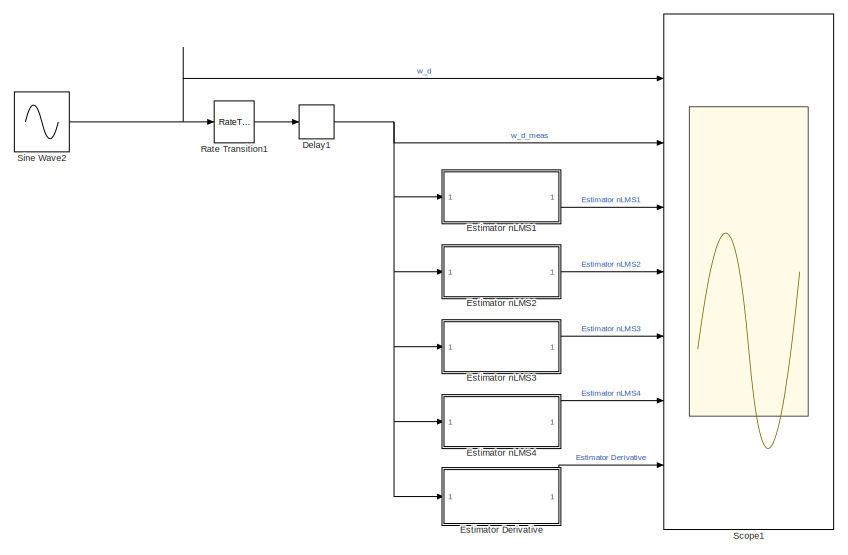
[diagram: root canvas - part 1/2, left side, full height]
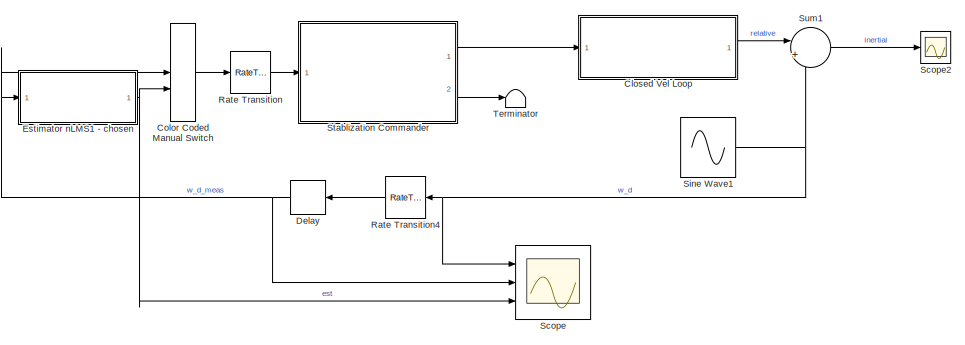
[diagram: root canvas - part 2/2, middle right region]
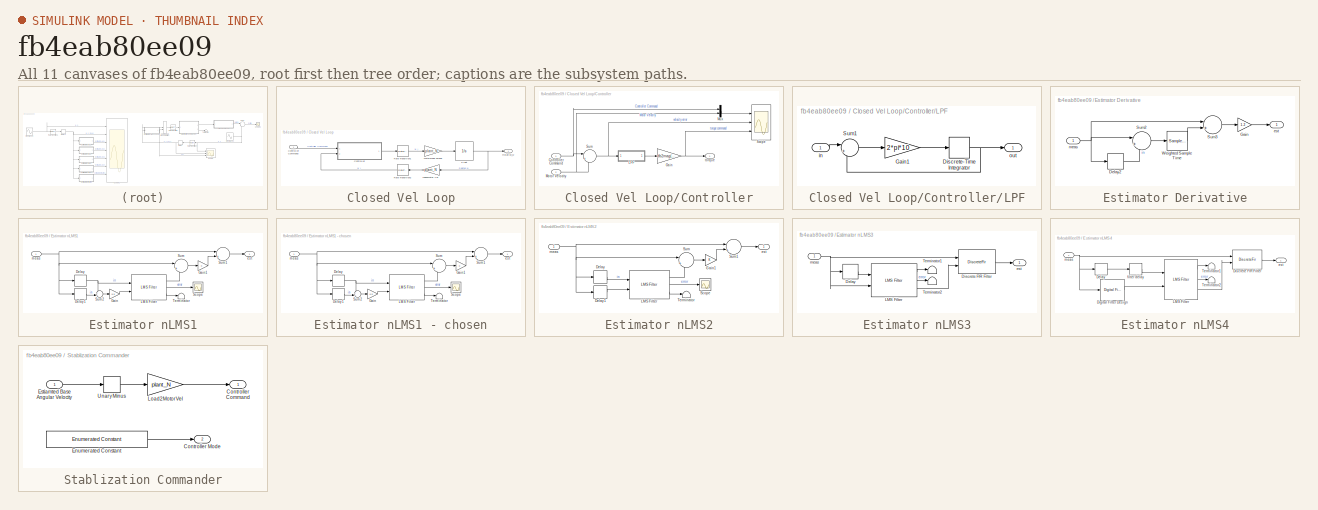
[diagram: thumbnail index - all 11 canvases of the model, root first then tree order]
MODEL slx_fb4eab80ee09
KIND model
CONFIG AbsTol = auto
CONFIG EnableMultiTasking = off
CONFIG FixedStep = auto
CONFIG MaxStep = auto
CONFIG MinStep = auto
CONFIG RelTol = 1e-3
CONFIG SampleTimeConstraint = Unconstrained
CONFIG SolverName = VariableStepAuto
CONFIG StartTime = 0.0
CONFIG StopTime = 20
BLOCK [SubSystem] Closed Vel Loop
  Ports = [1, 1]
  RequestExecContextInheritance = off
BLOCK [SubSystem] Closed Vel Loop/Controller
  Ports = [2, 1]
  RequestExecContextInheritance = off
BLOCK [Inport] Closed Vel Loop/Controller Command
BLOCK [Inport] Closed Vel Loop/Controller/Controller Command
BLOCK [Gain] Closed Vel Loop/Controller/Gain
  Gain = db2mag(25)
BLOCK [SubSystem] Closed Vel Loop/Controller/LPF
  Ports = [1, 1]
  RequestExecContextInheritance = off
BLOCK [DiscreteIntegrator] Closed Vel Loop/Controller/LPF/Discrete-Time Integrator
  ICPrevOutput = DiscIntNeverNeededParam
  ICPrevScaledInput = DiscIntNeverNeededParam
  InitialConditionSetting = Auto
  Ports = [1, 1]
  SampleTime = -1
BLOCK [Gain] Closed Vel Loop/Controller/LPF/Gain1
  Gain = 2*pi*10
BLOCK [Sum] Closed Vel Loop/Controller/LPF/Sum1
  Inputs = |+-
  Ports = [2, 1]
BLOCK [Inport] Closed Vel Loop/Controller/LPF/in
BLOCK [Outport] Closed Vel Loop/Controller/LPF/out
BLOCK [Inport] Closed Vel Loop/Controller/Motor Velocity
  Port = 2
BLOCK [Mux] Closed Vel Loop/Controller/Mux
  DisplayOption = bar
  Inputs = 2
  Ports = [2, 1]
BLOCK [Scope] Closed Vel Loop/Controller/Scope
  Floating = off
  NumInputPorts = 3
  Ports = [3]
  ScopeSpecificationString = Simulink.scopes.TimeScopeBlockCfg('CurrentConfiguration', extmgr.ConfigurationSet(extmgr.Configuration('Core','General UI',true),extmgr.Configuration('Core','Source UI',true),extmgr.Configuration('Sources','WiredSimulink',true,'DataLoggingVariableName','ScopeData1'),extmgr.Configuration('Visuals','Time Domain',true,'SerializedDisplays',{struct('MinYLimReal','-0.23853','MaxYLimReal','0.23581','YLab...<+2853ch>
BLOCK [Sum] Closed Vel Loop/Controller/Sum
  Inputs = |+-
  Ports = [2, 1]
BLOCK [Outport] Closed Vel Loop/Controller/torque
BLOCK [Gain] Closed Vel Loop/Load2Motor Vel
  Gain = plant_N
BLOCK [Gain] Closed Vel Loop/Motor2Load Torque
  Gain = plant_N
BLOCK [Integrator] Closed Vel Loop/Plant
  Ports = [1, 1]
BLOCK [RateTransition] Closed Vel Loop/Rate Transition1
  OutPortSampleTime = 0
BLOCK [RateTransition] Closed Vel Loop/Rate Transition2
  NameLocation = top
  OutPortSampleTime = ts_control
BLOCK [Outport] Closed Vel Loop/Relative_w
BLOCK [ManualSwitch] Color Coded Manual Switch
  CurrentSetting = 0
  OpenFcn = sw = get_param(gcb,'sw');\nif strcmp(sw,'1')\nset_param(gcb,'sw','0');\nelse\nset_param(gcb,'sw','1');\nend\nif strcmp(sw,'1')\n    set_param(gcb,'backgroundcolor','red')\nelse\n    set_param(gcb,'backgroundcolor','green')\nend
BLOCK [Delay] Delay
  DelayLength = 5
  InputPortMap = u0
  NameLocation = top
  Ports = [1, 1]
BLOCK [Delay] Delay1
  DelayLength = 5
  InputPortMap = u0
  Ports = [1, 1]
BLOCK [SubSystem] Estimator Derivative
  Ports = [1, 1]
  RequestExecContextInheritance = off
BLOCK [Delay] Estimator Derivative/Delay2
  DelayLength = 1
  InputPortMap = u0
  Ports = [1, 1]
BLOCK [Gain] Estimator Derivative/Gain
  Gain = 1.2
BLOCK [Sum] Estimator Derivative/Sum2
  Inputs = |+-
  Ports = [2, 1]
BLOCK [Sum] Estimator Derivative/Sum3
  Inputs = |++
  Ports = [2, 1]
BLOCK [SampleTimeMath] Estimator Derivative/Weighted Sample Time
  TsampMathOp = Ts Only
BLOCK [Outport] Estimator Derivative/est
BLOCK [Inport] Estimator Derivative/meas
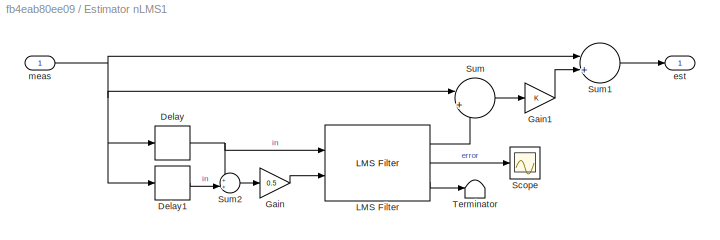
BLOCK [SubSystem] Estimator nLMS1
  Ports = [1, 1]
  RequestExecContextInheritance = off
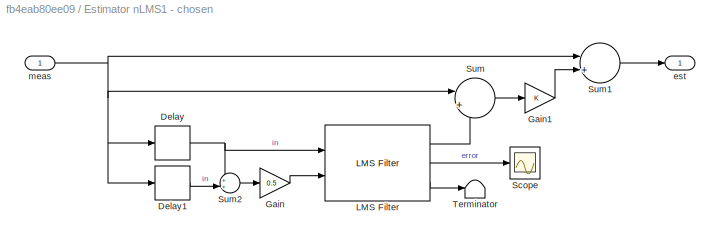
BLOCK [SubSystem] Estimator nLMS1 - chosen
  NameLocation = top
  Ports = [1, 1]
  RequestExecContextInheritance = off
BLOCK [Delay] Estimator nLMS1 - chosen/Delay
  InputPortMap = u0
  Ports = [1, 1]
BLOCK [Delay] Estimator nLMS1 - chosen/Delay1
  DelayLength = 1
  InputPortMap = u0
  Ports = [1, 1]
BLOCK [Gain] Estimator nLMS1 - chosen/Gain
  Gain = 0.5
BLOCK [Gain] Estimator nLMS1 - chosen/Gain1
BLOCK [Reference] Estimator nLMS1 - chosen/LMS Filter  REF=dspadpt3/LMS Filter
  Ports = [2, 3]
  SourceBlock = dspadpt3/LMS Filter
  SourceProductName = DSP System Toolbox
  SourceType = LMS Filter
BLOCK [Scope] Estimator nLMS1 - chosen/Scope
  Floating = off
  NumInputPorts = 1
  Ports = [1]
  ScopeSpecificationString = Simulink.scopes.TimeScopeBlockCfg('CurrentConfiguration', extmgr.ConfigurationSet(extmgr.Configuration('Core','General UI',true),extmgr.Configuration('Core','Source UI',true),extmgr.Configuration('Sources','WiredSimulink',true,'DataLoggingVariableName','ScopeData1'),extmgr.Configuration('Visuals','Time Domain',true,'SerializedDisplays',{struct('MinYLimReal','-0.16015','MaxYLimReal','0.35917','YLab...<+1398ch>
BLOCK [Sum] Estimator nLMS1 - chosen/Sum
  Inputs = |+-
  Ports = [2, 1]
BLOCK [Sum] Estimator nLMS1 - chosen/Sum1
  Inputs = |++
  Ports = [2, 1]
BLOCK [Sum] Estimator nLMS1 - chosen/Sum2
  Inputs = ++|
  Ports = [2, 1]
BLOCK [Terminator] Estimator nLMS1 - chosen/Terminator
  NameLocation = top
BLOCK [Outport] Estimator nLMS1 - chosen/est
BLOCK [Inport] Estimator nLMS1 - chosen/meas
BLOCK [Delay] Estimator nLMS1/Delay
  InputPortMap = u0
  Ports = [1, 1]
BLOCK [Delay] Estimator nLMS1/Delay1
  DelayLength = 1
  InputPortMap = u0
  Ports = [1, 1]
BLOCK [Gain] Estimator nLMS1/Gain
  Gain = 0.5
BLOCK [Gain] Estimator nLMS1/Gain1
BLOCK [Reference] Estimator nLMS1/LMS Filter  REF=dspadpt3/LMS Filter
  Ports = [2, 3]
  SourceBlock = dspadpt3/LMS Filter
  SourceProductName = DSP System Toolbox
  SourceType = LMS Filter
BLOCK [Scope] Estimator nLMS1/Scope
  Floating = off
  NumInputPorts = 1
  Ports = [1]
  ScopeSpecificationString = Simulink.scopes.TimeScopeBlockCfg('CurrentConfiguration', extmgr.ConfigurationSet(extmgr.Configuration('Core','General UI',true),extmgr.Configuration('Core','Source UI',true),extmgr.Configuration('Sources','WiredSimulink',true,'DataLoggingVariableName','ScopeData1'),extmgr.Configuration('Visuals','Time Domain',true,'SerializedDisplays',{struct('MinYLimReal','-0.21194','MaxYLimReal','0.36492','YLab...<+1398ch>
BLOCK [Sum] Estimator nLMS1/Sum
  Inputs = |+-
  Ports = [2, 1]
BLOCK [Sum] Estimator nLMS1/Sum1
  Inputs = |++
  Ports = [2, 1]
BLOCK [Sum] Estimator nLMS1/Sum2
  Inputs = ++|
  Ports = [2, 1]
BLOCK [Terminator] Estimator nLMS1/Terminator
  NameLocation = top
BLOCK [Outport] Estimator nLMS1/est
BLOCK [Inport] Estimator nLMS1/meas
BLOCK [SubSystem] Estimator nLMS2
  Ports = [1, 1]
  RequestExecContextInheritance = off
BLOCK [Delay] Estimator nLMS2/Delay
  InputPortMap = u0
  Ports = [1, 1]
BLOCK [Delay] Estimator nLMS2/Delay1
  DelayLength = 1
  InputPortMap = u0
  Ports = [1, 1]
BLOCK [Gain] Estimator nLMS2/Gain1
BLOCK [Reference] Estimator nLMS2/LMS Filter  REF=dspadpt3/LMS Filter
  Ports = [2, 3]
  SourceBlock = dspadpt3/LMS Filter
  SourceProductName = DSP System Toolbox
  SourceType = LMS Filter
BLOCK [Scope] Estimator nLMS2/Scope
  Floating = off
  NumInputPorts = 1
  Ports = [1]
  ScopeSpecificationString = Simulink.scopes.TimeScopeBlockCfg('CurrentConfiguration', extmgr.ConfigurationSet(extmgr.Configuration('Core','General UI',true),extmgr.Configuration('Core','Source UI',true),extmgr.Configuration('Sources','WiredSimulink',true,'DataLoggingVariableName','ScopeData1'),extmgr.Configuration('Visuals','Time Domain',true,'SerializedDisplays',{struct('MinYLimReal','-0.16015','MaxYLimReal','0.35917','YLab...<+1398ch>
BLOCK [Sum] Estimator nLMS2/Sum
  Inputs = |+-
  Ports = [2, 1]
BLOCK [Sum] Estimator nLMS2/Sum1
  Inputs = |++
  Ports = [2, 1]
BLOCK [Terminator] Estimator nLMS2/Terminator
  NameLocation = top
BLOCK [Outport] Estimator nLMS2/est
BLOCK [Inport] Estimator nLMS2/meas
BLOCK [SubSystem] Estimator nLMS3
  Ports = [1, 1]
  RequestExecContextInheritance = off
BLOCK [Delay] Estimator nLMS3/Delay
  DelayLength = 5
  InputPortMap = u0
  Ports = [1, 1]
BLOCK [DiscreteFir] Estimator nLMS3/Discrete FIR Filter
  CoefSource = Input port
  InputPortMap = u0,u1
  InputProcessing = Columns as channels (frame based)
  OutputPortMap = o0
  Ports = [2, 1]
BLOCK [Reference] Estimator nLMS3/LMS Filter  REF=dspadpt3/LMS Filter
  Ports = [2, 3]
  SourceBlock = dspadpt3/LMS Filter
  SourceProductName = DSP System Toolbox
  SourceType = LMS Filter
BLOCK [Terminator] Estimator nLMS3/Terminator1
  NameLocation = top
BLOCK [Terminator] Estimator nLMS3/Terminator2
  NameLocation = top
BLOCK [Outport] Estimator nLMS3/est
BLOCK [Inport] Estimator nLMS3/meas
BLOCK [SubSystem] Estimator nLMS4
  Ports = [1, 1]
  RequestExecContextInheritance = off
BLOCK [Delay] Estimator nLMS4/Delay
  DelayLength = 5
  InputPortMap = u0
  Ports = [1, 1]
BLOCK [Reference] Estimator nLMS4/Digital Filter Design  REF=dsparch4/Digital
Filter Design
  Ports = [1, 1]
  SourceBlock = dsparch4/Digital\nFilter Design
  SourceProductBaseCode = DS
  SourceType = Digital Filter Design
  UserDataPersistent = on
BLOCK [DiscreteFir] Estimator nLMS4/Discrete FIR Filter
  CoefSource = Input port
  InputPortMap = u0,u1
  InputProcessing = Columns as channels (frame based)
  OutputPortMap = o0
  Ports = [2, 1]
BLOCK [Reference] Estimator nLMS4/LMS Filter  REF=dspadpt3/LMS Filter
  Ports = [2, 3]
  SourceBlock = dspadpt3/LMS Filter
  SourceProductName = DSP System Toolbox
  SourceType = LMS Filter
BLOCK [Terminator] Estimator nLMS4/Terminator1
  NameLocation = top
BLOCK [Terminator] Estimator nLMS4/Terminator2
  NameLocation = top
BLOCK [Outport] Estimator nLMS4/est
BLOCK [Delay] Estimator nLMS4/filter delay
  DelayLength = 12
  InputPortMap = u0
  Ports = [1, 1]
BLOCK [Inport] Estimator nLMS4/meas
BLOCK [RateTransition] Rate Transition
  OutPortSampleTime = ts_control
BLOCK [RateTransition] Rate Transition1
  OutPortSampleTime = ts_camera
BLOCK [RateTransition] Rate Transition4
  NameLocation = top
  OutPortSampleTime = ts_camera
BLOCK [Scope] Scope
  Floating = off
  NumInputPorts = 3
  Ports = [3]
  ScopeSpecificationString = Simulink.scopes.TimeScopeBlockCfg('CurrentConfiguration', extmgr.ConfigurationSet(extmgr.Configuration('Core','General UI',true),extmgr.Configuration('Core','Source UI',true),extmgr.Configuration('Sources','WiredSimulink',true,'DataLoggingVariableName','ScopeData2'),extmgr.Configuration('Visuals','Time Domain',true,'SerializedDisplays',{struct('MinYLimReal','-1.76355','MaxYLimReal','1.54072','YLab...<+1452ch>
BLOCK [Scope] Scope1
  Floating = off
  NumInputPorts = 7
  Ports = [7]
  ScopeSpecificationString = Simulink.scopes.TimeScopeBlockCfg('CurrentConfiguration', extmgr.ConfigurationSet(extmgr.Configuration('Core','General UI',true),extmgr.Configuration('Core','Source UI',true),extmgr.Configuration('Sources','WiredSimulink',true,'DataLoggingVariableName','ScopeData3'),extmgr.Configuration('Visuals','Time Domain',true,'SerializedDisplays',{struct('MinYLimReal','-1.06957','MaxYLimReal','1.05953','YLab...<+1730ch>
BLOCK [Scope] Scope2
  Floating = off
  NumInputPorts = 1
  Ports = [1]
  ScopeSpecificationString = Simulink.scopes.TimeScopeBlockCfg('CurrentConfiguration', extmgr.ConfigurationSet(extmgr.Configuration('Core','General UI',true),extmgr.Configuration('Core','Source UI',true),extmgr.Configuration('Sources','WiredSimulink',true,'DataLoggingVariableName','ScopeData1'),extmgr.Configuration('Visuals','Time Domain',true,'SerializedDisplays',{struct('MinYLimReal','-1.67866','MaxYLimReal','0.91765','YLab...<+1415ch>
BLOCK [Sin] Sine Wave1
  Frequency = 2*pi*1
  Ports = [0, 1]
  SampleTime = 0
BLOCK [Sin] Sine Wave2
  Frequency = 2*pi*1
  Ports = [0, 1]
  SampleTime = 0
BLOCK [SubSystem] Stablization Commander
  Ports = [1, 2]
  RequestExecContextInheritance = off
  TreatAsAtomicUnit = on
BLOCK [Outport] Stablization Commander/Controller Command
BLOCK [Outport] Stablization Commander/Controller Mode
  Port = 2
BLOCK [Reference] Stablization Commander/Enumerated Constant  REF=simulink/Sources/Enumerated
Constant
  Ports = [0, 1]
  SourceBlock = simulink/Sources/Enumerated\nConstant
  SourceProductBaseCode = SL
  SourceType = Enumerated Constant
BLOCK [Inport] Stablization Commander/Estiamted Base Angular Velocity
BLOCK [Gain] Stablization Commander/Load2MotorVel
  Gain = plant_N
BLOCK [UnaryMinus] Stablization Commander/Unary Minus
BLOCK [Sum] Sum1
  Inputs = |++
  Ports = [2, 1]
BLOCK [Terminator] Terminator
LINE Closed Vel Loop/Controller Command:1 -> Closed Vel Loop/Controller:1
NET Closed Vel Loop/Controller/Controller Command:1 -> Closed Vel Loop/Controller/Mux:1, Closed Vel Loop/Controller/Sum:1
NET Closed Vel Loop/Controller/Gain:1 -> Closed Vel Loop/Controller/Scope:3, Closed Vel Loop/Controller/torque:1
NET Closed Vel Loop/Controller/LPF/Discrete-Time Integrator:1 -> Closed Vel Loop/Controller/LPF/Sum1:2, Closed Vel Loop/Controller/LPF/out:1
LINE Closed Vel Loop/Controller/LPF/Gain1:1 -> Closed Vel Loop/Controller/LPF/Discrete-Time Integrator:1
LINE Closed Vel Loop/Controller/LPF/Sum1:1 -> Closed Vel Loop/Controller/LPF/Gain1:1
LINE Closed Vel Loop/Controller/LPF/in:1 -> Closed Vel Loop/Controller/LPF/Sum1:1
LINE Closed Vel Loop/Controller/LPF:1 -> Closed Vel Loop/Controller/Gain:1
NET Closed Vel Loop/Controller/Motor Velocity:1 -> Closed Vel Loop/Controller/Mux:2, Closed Vel Loop/Controller/Sum:2
LINE Closed Vel Loop/Controller/Mux:1 -> Closed Vel Loop/Controller/Scope:1
NET Closed Vel Loop/Controller/Sum:1 -> Closed Vel Loop/Controller/LPF:1, Closed Vel Loop/Controller/Scope:2
LINE Closed Vel Loop/Controller:1 -> Closed Vel Loop/Rate Transition1:1
LINE Closed Vel Loop/Load2Motor Vel:1 -> Closed Vel Loop/Rate Transition2:1
LINE Closed Vel Loop/Motor2Load Torque:1 -> Closed Vel Loop/Plant:1
NET Closed Vel Loop/Plant:1 -> Closed Vel Loop/Load2Motor Vel:1, Closed Vel Loop/Relative_w:1
LINE Closed Vel Loop/Rate Transition1:1 -> Closed Vel Loop/Motor2Load Torque:1
LINE Closed Vel Loop/Rate Transition2:1 -> Closed Vel Loop/Controller:2
LINE Closed Vel Loop:1 -> Sum1:1
LINE Color Coded Manual Switch:1 -> Rate Transition:1
NET Delay1:1 -> Estimator Derivative:1, Estimator nLMS1:1, Estimator nLMS2:1, Estimator nLMS3:1, Estimator nLMS4:1, Scope1:2
NET Delay:1 -> Color Coded Manual Switch:1, Estimator nLMS1 - chosen:1, Scope:2
LINE Estimator Derivative/Delay2:1 -> Estimator Derivative/Sum2:2
LINE Estimator Derivative/Gain:1 -> Estimator Derivative/est:1
LINE Estimator Derivative/Sum2:1 -> Estimator Derivative/Weighted Sample Time:1
LINE Estimator Derivative/Sum3:1 -> Estimator Derivative/Gain:1
LINE Estimator Derivative/Weighted Sample Time:1 -> Estimator Derivative/Sum3:2
NET Estimator Derivative/meas:1 -> Estimator Derivative/Delay2:1, Estimator Derivative/Sum2:1, Estimator Derivative/Sum3:1
LINE Estimator Derivative:1 -> Scope1:7
LINE Estimator nLMS1 - chosen/Delay1:1 -> Estimator nLMS1 - chosen/Sum2:2
NET Estimator nLMS1 - chosen/Delay:1 -> Estimator nLMS1 - chosen/LMS Filter:1, Estimator nLMS1 - chosen/Sum2:1
LINE Estimator nLMS1 - chosen/Gain1:1 -> Estimator nLMS1 - chosen/Sum1:2
LINE Estimator nLMS1 - chosen/Gain:1 -> Estimator nLMS1 - chosen/LMS Filter:2
LINE Estimator nLMS1 - chosen/LMS Filter:1 -> Estimator nLMS1 - chosen/Sum:2
LINE Estimator nLMS1 - chosen/LMS Filter:2 -> Estimator nLMS1 - chosen/Scope:1
LINE Estimator nLMS1 - chosen/LMS Filter:3 -> Estimator nLMS1 - chosen/Terminator:1
LINE Estimator nLMS1 - chosen/Sum1:1 -> Estimator nLMS1 - chosen/est:1
LINE Estimator nLMS1 - chosen/Sum2:1 -> Estimator nLMS1 - chosen/Gain:1
LINE Estimator nLMS1 - chosen/Sum:1 -> Estimator nLMS1 - chosen/Gain1:1
NET Estimator nLMS1 - chosen/meas:1 -> Estimator nLMS1 - chosen/Delay1:1, Estimator nLMS1 - chosen/Delay:1, Estimator nLMS1 - chosen/Sum1:1, Estimator nLMS1 - chosen/Sum:1
NET Estimator nLMS1 - chosen:1 -> Color Coded Manual Switch:2, Scope:3
LINE Estimator nLMS1/Delay1:1 -> Estimator nLMS1/Sum2:2
NET Estimator nLMS1/Delay:1 -> Estimator nLMS1/LMS Filter:1, Estimator nLMS1/Sum2:1
LINE Estimator nLMS1/Gain1:1 -> Estimator nLMS1/Sum1:2
LINE Estimator nLMS1/Gain:1 -> Estimator nLMS1/LMS Filter:2
LINE Estimator nLMS1/LMS Filter:1 -> Estimator nLMS1/Sum:2
LINE Estimator nLMS1/LMS Filter:2 -> Estimator nLMS1/Scope:1
LINE Estimator nLMS1/LMS Filter:3 -> Estimator nLMS1/Terminator:1
LINE Estimator nLMS1/Sum1:1 -> Estimator nLMS1/est:1
LINE Estimator nLMS1/Sum2:1 -> Estimator nLMS1/Gain:1
LINE Estimator nLMS1/Sum:1 -> Estimator nLMS1/Gain1:1
NET Estimator nLMS1/meas:1 -> Estimator nLMS1/Delay1:1, Estimator nLMS1/Delay:1, Estimator nLMS1/Sum1:1, Estimator nLMS1/Sum:1
LINE Estimator nLMS1:1 -> Scope1:3
LINE Estimator nLMS2/Delay1:1 -> Estimator nLMS2/LMS Filter:2
LINE Estimator nLMS2/Delay:1 -> Estimator nLMS2/LMS Filter:1
LINE Estimator nLMS2/Gain1:1 -> Estimator nLMS2/Sum1:2
LINE Estimator nLMS2/LMS Filter:1 -> Estimator nLMS2/Sum:2
LINE Estimator nLMS2/LMS Filter:2 -> Estimator nLMS2/Scope:1
LINE Estimator nLMS2/LMS Filter:3 -> Estimator nLMS2/Terminator:1
LINE Estimator nLMS2/Sum1:1 -> Estimator nLMS2/est:1
LINE Estimator nLMS2/Sum:1 -> Estimator nLMS2/Gain1:1
NET Estimator nLMS2/meas:1 -> Estimator nLMS2/Delay1:1, Estimator nLMS2/Delay:1, Estimator nLMS2/Sum1:1, Estimator nLMS2/Sum:1
LINE Estimator nLMS2:1 -> Scope1:4
LINE Estimator nLMS3/Delay:1 -> Estimator nLMS3/LMS Filter:1
LINE Estimator nLMS3/Discrete FIR Filter:1 -> Estimator nLMS3/est:1
LINE Estimator nLMS3/LMS Filter:1 -> Estimator nLMS3/Terminator1:1
LINE Estimator nLMS3/LMS Filter:2 -> Estimator nLMS3/Terminator2:1
LINE Estimator nLMS3/LMS Filter:3 -> Estimator nLMS3/Discrete FIR Filter:2
NET Estimator nLMS3/meas:1 -> Estimator nLMS3/Delay:1, Estimator nLMS3/Discrete FIR Filter:1, Estimator nLMS3/LMS Filter:2
LINE Estimator nLMS3:1 -> Scope1:5
LINE Estimator nLMS4/Delay:1 -> Estimator nLMS4/filter delay:1
LINE Estimator nLMS4/Digital Filter Design:1 -> Estimator nLMS4/LMS Filter:2
LINE Estimator nLMS4/Discrete FIR Filter:1 -> Estimator nLMS4/est:1
LINE Estimator nLMS4/LMS Filter:1 -> Estimator nLMS4/Terminator1:1
LINE Estimator nLMS4/LMS Filter:2 -> Estimator nLMS4/Terminator2:1
LINE Estimator nLMS4/LMS Filter:3 -> Estimator nLMS4/Discrete FIR Filter:2
LINE Estimator nLMS4/filter delay:1 -> Estimator nLMS4/LMS Filter:1
NET Estimator nLMS4/meas:1 -> Estimator nLMS4/Delay:1, Estimator nLMS4/Digital Filter Design:1, Estimator nLMS4/Discrete FIR Filter:1
LINE Estimator nLMS4:1 -> Scope1:6
LINE Rate Transition1:1 -> Delay1:1
LINE Rate Transition4:1 -> Delay:1
LINE Rate Transition:1 -> Stablization Commander:1
NET Sine Wave1:1 -> Rate Transition4:1, Scope:1, Sum1:2
NET Sine Wave2:1 -> Rate Transition1:1, Scope1:1
LINE Stablization Commander/Enumerated Constant:1 -> Stablization Commander/Controller Mode:1
LINE Stablization Commander/Estiamted Base Angular Velocity:1 -> Stablization Commander/Unary Minus:1
LINE Stablization Commander/Load2MotorVel:1 -> Stablization Commander/Controller Command:1
LINE Stablization Commander/Unary Minus:1 -> Stablization Commander/Load2MotorVel:1
LINE Stablization Commander:1 -> Closed Vel Loop:1
LINE Stablization Commander:2 -> Terminator:1
LINE Sum1:1 -> Scope2:1
note: NET lines group one-source signal fan-out (src -> all destinations, sorted); 1:1 wires keep LINE
